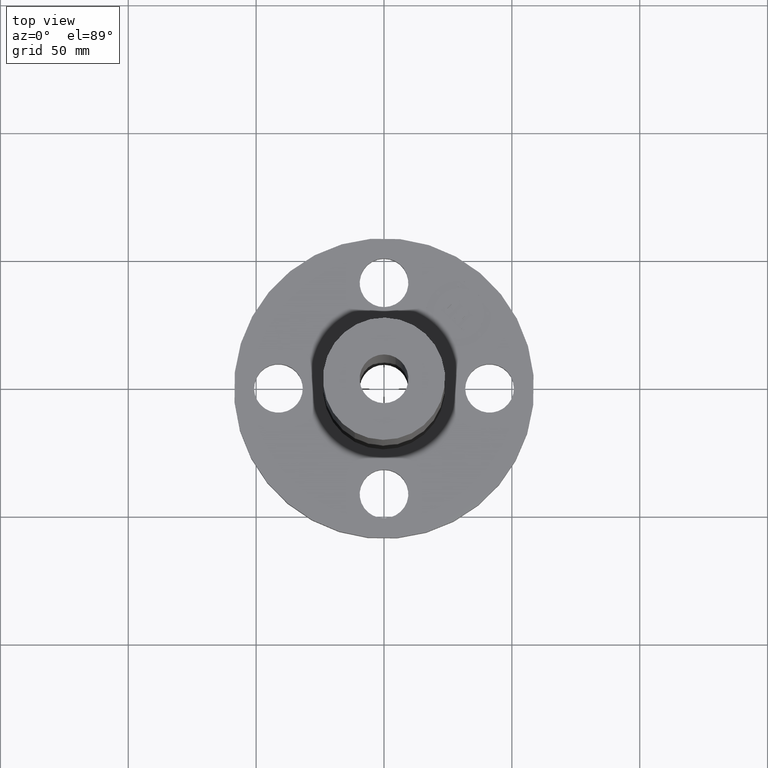
[diagram: clean part render]
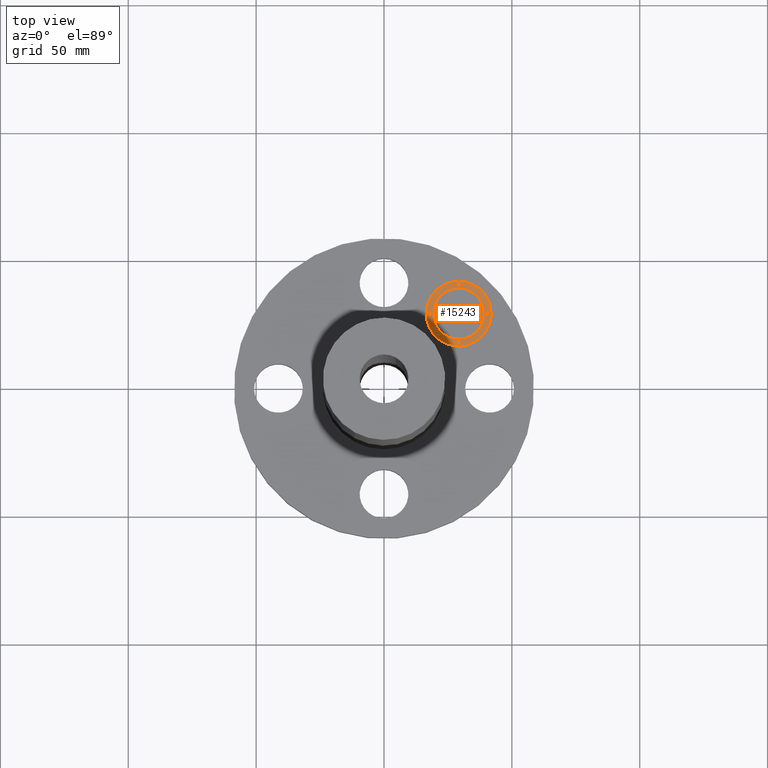
[diagram: same view with one face highlighted and labeled with its STEP entity id]
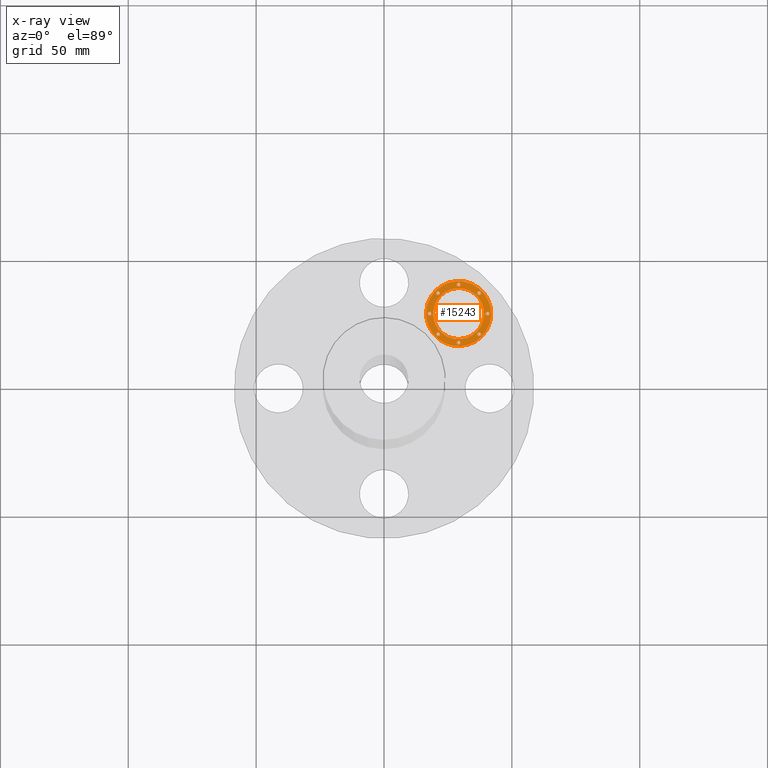
[diagram: x-ray of the same camera — body ghosted, the highlighted face saturated]
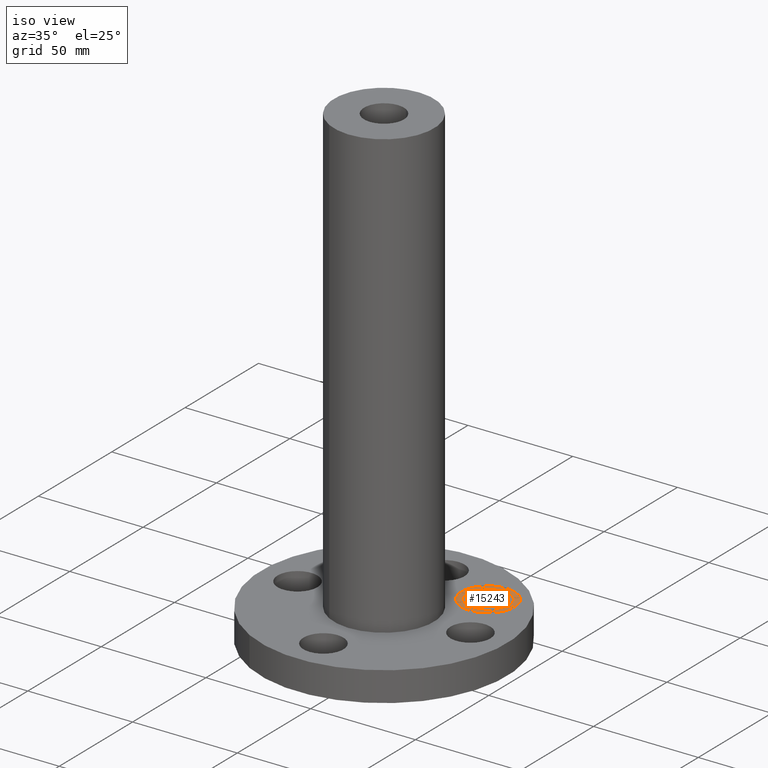
[diagram: same view with one face highlighted and labeled with its STEP entity id]
A machine part, top view. The second image highlights one B-rep face of the part: STEP entity #15243.
The next image is the same camera in x-ray: the body ghosted, the highlighted face saturated — about 0% of this face is hidden behind the body in this view.
A second angle (iso view) of the same face is appended — the face is thin or edge-on in the first view.
In plain terms, the highlighted planar face has unit normal (0, 0, 1).
Its self-contained STEP definition (entity closure, byte-faithful):
#3890=AXIS2_PLACEMENT_3D('Plane Axis2P3D',#3887,#3888,#3889) ;
#15041=AXIS2_PLACEMENT_3D('Circle Axis2P3D',#15039,#15040,$) ;
#15060=AXIS2_PLACEMENT_3D('Circle Axis2P3D',#15058,#15059,$) ;
#15083=AXIS2_PLACEMENT_3D('Circle Axis2P3D',#15081,#15082,$) ;
#15092=AXIS2_PLACEMENT_3D('Circle Axis2P3D',#15090,#15091,$) ;
#15101=AXIS2_PLACEMENT_3D('Circle Axis2P3D',#15099,#15100,$) ;
#15110=AXIS2_PLACEMENT_3D('Circle Axis2P3D',#15108,#15109,$) ;
#15119=AXIS2_PLACEMENT_3D('Circle Axis2P3D',#15117,#15118,$) ;
#15128=AXIS2_PLACEMENT_3D('Circle Axis2P3D',#15126,#15127,$) ;
#15137=AXIS2_PLACEMENT_3D('Circle Axis2P3D',#15135,#15136,$) ;
#15146=AXIS2_PLACEMENT_3D('Circle Axis2P3D',#15144,#15145,$) ;
#15155=AXIS2_PLACEMENT_3D('Circle Axis2P3D',#15153,#15154,$) ;
#15164=AXIS2_PLACEMENT_3D('Circle Axis2P3D',#15162,#15163,$) ;
#15173=AXIS2_PLACEMENT_3D('Circle Axis2P3D',#15171,#15172,$) ;
#15182=AXIS2_PLACEMENT_3D('Circle Axis2P3D',#15180,#15181,$) ;
#15191=AXIS2_PLACEMENT_3D('Circle Axis2P3D',#15189,#15190,$) ;
#15200=AXIS2_PLACEMENT_3D('Circle Axis2P3D',#15198,#15199,$) ;
#15209=AXIS2_PLACEMENT_3D('Circle Axis2P3D',#15207,#15208,$) ;
#15218=AXIS2_PLACEMENT_3D('Circle Axis2P3D',#15216,#15217,$) ;
#15227=AXIS2_PLACEMENT_3D('Circle Axis2P3D',#15225,#15226,$) ;
#15236=AXIS2_PLACEMENT_3D('Circle Axis2P3D',#15234,#15235,$) ;
#3887=CARTESIAN_POINT('Axis2P3D Location',(0.,0.,0.552500000002)) ;
#15029=CARTESIAN_POINT('Vertex',(0.795495132374,1.50260190649,0.552500000002)) ;
#15036=CARTESIAN_POINT('Vertex',(1.50260190649,0.795495132374,0.552500000002)) ;
#15039=CARTESIAN_POINT('Axis2P3D Location',(1.14904851943,1.14904851943,0.552500000002)) ;
#15058=CARTESIAN_POINT('Axis2P3D Location',(1.14904851943,1.14904851943,0.552500000002)) ;
#15081=CARTESIAN_POINT('Axis2P3D Location',(1.14904851943,1.14904851943,0.552500000002)) ;
#15085=CARTESIAN_POINT('Vertex',(1.42760573348,0.870491305386,0.552500000002)) ;
#15087=CARTESIAN_POINT('Vertex',(0.870491305386,1.42760573348,0.552500000002)) ;
#15090=CARTESIAN_POINT('Axis2P3D Location',(1.14904851943,1.14904851943,0.552500000002)) ;
#15099=CARTESIAN_POINT('Axis2P3D Location',(0.83299321888,0.83299321888,0.552500000002)) ;
#15103=CARTESIAN_POINT('Vertex',(0.854420696883,0.811565740876,0.552500000002)) ;
#15105=CARTESIAN_POINT('Vertex',(0.811565740876,0.854420696883,0.552500000002)) ;
#15108=CARTESIAN_POINT('Axis2P3D Location',(0.83299321888,0.83299321888,0.552500000002)) ;
#15117=CARTESIAN_POINT('Axis2P3D Location',(0.83299321888,1.46510381999,0.552500000002)) ;
#15121=CARTESIAN_POINT('Vertex',(0.854420696883,1.44367634198,0.552500000002)) ;
#15123=CARTESIAN_POINT('Vertex',(0.811565740876,1.48653129799,0.552500000002)) ;
#15126=CARTESIAN_POINT('Axis2P3D Location',(0.83299321888,1.46510381999,0.552500000002)) ;
#15135=CARTESIAN_POINT('Axis2P3D Location',(0.702078826931,1.14904851943,0.552500000002)) ;
#15139=CARTESIAN_POINT('Vertex',(0.723506304934,1.12762104143,0.552500000002)) ;
#15141=CARTESIAN_POINT('Vertex',(0.680651348927,1.17047599744,0.552500000002)) ;
#15144=CARTESIAN_POINT('Axis2P3D Location',(0.702078826931,1.14904851943,0.552500000002)) ;
#15153=CARTESIAN_POINT('Axis2P3D Location',(1.46510381999,1.46510381999,0.552500000002)) ;
#15157=CARTESIAN_POINT('Vertex',(1.48653129799,1.44367634198,0.552500000002)) ;
#15159=CARTESIAN_POINT('Vertex',(1.44367634198,1.48653129799,0.552500000002)) ;
#15162=CARTESIAN_POINT('Axis2P3D Location',(1.46510381999,1.46510381999,0.552500000002)) ;
#15171=CARTESIAN_POINT('Axis2P3D Location',(1.14904851943,1.59601821193,0.552500000002)) ;
#15175=CARTESIAN_POINT('Vertex',(1.17047599744,1.57459073393,0.552500000002)) ;
#15177=CARTESIAN_POINT('Vertex',(1.12762104143,1.61744568994,0.552500000002)) ;
#15180=CARTESIAN_POINT('Axis2P3D Location',(1.14904851943,1.59601821193,0.552500000002)) ;
#15189=CARTESIAN_POINT('Axis2P3D Location',(1.46510381999,0.83299321888,0.552500000002)) ;
#15193=CARTESIAN_POINT('Vertex',(1.44367634198,0.854420696883,0.552500000002)) ;
#15195=CARTESIAN_POINT('Vertex',(1.48653129799,0.811565740876,0.552500000002)) ;
#15198=CARTESIAN_POINT('Axis2P3D Location',(1.46510381999,0.83299321888,0.552500000002)) ;
#15207=CARTESIAN_POINT('Axis2P3D Location',(1.14904851943,0.702078826931,0.552500000002)) ;
#15211=CARTESIAN_POINT('Vertex',(1.12762104143,0.723506304934,0.552500000002)) ;
#15213=CARTESIAN_POINT('Vertex',(1.17047599744,0.680651348927,0.552500000002)) ;
#15216=CARTESIAN_POINT('Axis2P3D Location',(1.14904851943,0.702078826931,0.552500000002)) ;
#15225=CARTESIAN_POINT('Axis2P3D Location',(1.59601821193,1.14904851943,0.552500000002)) ;
#15229=CARTESIAN_POINT('Vertex',(1.57459073393,1.17047599744,0.552500000002)) ;
#15231=CARTESIAN_POINT('Vertex',(1.61744568994,1.12762104143,0.552500000002)) ;
#15234=CARTESIAN_POINT('Axis2P3D Location',(1.59601821193,1.14904851943,0.552500000002)) ;
#3888=DIRECTION('Axis2P3D Direction',(0.,0.,0.0393700787402)) ;
#3889=DIRECTION('Axis2P3D XDirection',(0.0393700787402,0.,0.)) ;
#15040=DIRECTION('Axis2P3D Direction',(0.,0.,0.0393700787402)) ;
#15059=DIRECTION('Axis2P3D Direction',(0.,0.,0.0393700787402)) ;
#15082=DIRECTION('Axis2P3D Direction',(0.,0.,0.0393700787402)) ;
#15091=DIRECTION('Axis2P3D Direction',(0.,0.,0.0393700787402)) ;
#15100=DIRECTION('Axis2P3D Direction',(0.,0.,0.0393700787402)) ;
#15109=DIRECTION('Axis2P3D Direction',(0.,0.,0.0393700787402)) ;
#15118=DIRECTION('Axis2P3D Direction',(0.,0.,0.0393700787402)) ;
#15127=DIRECTION('Axis2P3D Direction',(0.,0.,0.0393700787402)) ;
#15136=DIRECTION('Axis2P3D Direction',(0.,0.,0.0393700787402)) ;
#15145=DIRECTION('Axis2P3D Direction',(0.,0.,0.0393700787402)) ;
#15154=DIRECTION('Axis2P3D Direction',(0.,0.,0.0393700787402)) ;
#15163=DIRECTION('Axis2P3D Direction',(0.,0.,0.0393700787402)) ;
#15172=DIRECTION('Axis2P3D Direction',(0.,0.,0.0393700787402)) ;
#15181=DIRECTION('Axis2P3D Direction',(0.,0.,0.0393700787402)) ;
#15190=DIRECTION('Axis2P3D Direction',(0.,0.,0.0393700787402)) ;
#15199=DIRECTION('Axis2P3D Direction',(0.,0.,0.0393700787402)) ;
#15208=DIRECTION('Axis2P3D Direction',(0.,0.,0.0393700787402)) ;
#15217=DIRECTION('Axis2P3D Direction',(0.,0.,0.0393700787402)) ;
#15226=DIRECTION('Axis2P3D Direction',(0.,0.,0.0393700787402)) ;
#15235=DIRECTION('Axis2P3D Direction',(0.,0.,0.0393700787402)) ;
#15078=ORIENTED_EDGE('',*,*,#15043,.T.) ;
#15079=ORIENTED_EDGE('',*,*,#15062,.T.) ;
#15096=ORIENTED_EDGE('',*,*,#15089,.F.) ;
#15097=ORIENTED_EDGE('',*,*,#15094,.F.) ;
#15114=ORIENTED_EDGE('',*,*,#15107,.F.) ;
#15115=ORIENTED_EDGE('',*,*,#15112,.F.) ;
#15132=ORIENTED_EDGE('',*,*,#15125,.F.) ;
#15133=ORIENTED_EDGE('',*,*,#15130,.F.) ;
#15150=ORIENTED_EDGE('',*,*,#15143,.F.) ;
#15151=ORIENTED_EDGE('',*,*,#15148,.F.) ;
#15168=ORIENTED_EDGE('',*,*,#15161,.F.) ;
#15169=ORIENTED_EDGE('',*,*,#15166,.F.) ;
#15186=ORIENTED_EDGE('',*,*,#15179,.F.) ;
#15187=ORIENTED_EDGE('',*,*,#15184,.F.) ;
#15204=ORIENTED_EDGE('',*,*,#15197,.F.) ;
#15205=ORIENTED_EDGE('',*,*,#15202,.F.) ;
#15222=ORIENTED_EDGE('',*,*,#15215,.F.) ;
#15223=ORIENTED_EDGE('',*,*,#15220,.F.) ;
#15240=ORIENTED_EDGE('',*,*,#15233,.F.) ;
#15241=ORIENTED_EDGE('',*,*,#15238,.F.) ;
#15098=FACE_BOUND('',#15095,.T.) ;
#15116=FACE_BOUND('',#15113,.T.) ;
#15134=FACE_BOUND('',#15131,.T.) ;
#15152=FACE_BOUND('',#15149,.T.) ;
#15170=FACE_BOUND('',#15167,.T.) ;
#15188=FACE_BOUND('',#15185,.T.) ;
#15206=FACE_BOUND('',#15203,.T.) ;
#15224=FACE_BOUND('',#15221,.T.) ;
#15242=FACE_BOUND('',#15239,.T.) ;
#15243=ADVANCED_FACE('PartBody',(#15080,#15098,#15116,#15134,#15152,#15170,#15188,#15206,#15224,#15242),#3891,.T.) ;
#15042=CIRCLE('generated circle',#15041,0.499999995002) ;
#15061=CIRCLE('generated circle',#15060,0.499999995002) ;
#15084=CIRCLE('generated circle',#15083,0.393939390002) ;
#15093=CIRCLE('generated circle',#15092,0.393939390002) ;
#15102=CIRCLE('generated circle',#15101,0.0303030300001) ;
#15111=CIRCLE('generated circle',#15110,0.0303030300001) ;
#15120=CIRCLE('generated circle',#15119,0.0303030300001) ;
#15129=CIRCLE('generated circle',#15128,0.0303030300001) ;
#15138=CIRCLE('generated circle',#15137,0.0303030300001) ;
#15147=CIRCLE('generated circle',#15146,0.0303030300001) ;
#15156=CIRCLE('generated circle',#15155,0.0303030300001) ;
#15165=CIRCLE('generated circle',#15164,0.0303030300001) ;
#15174=CIRCLE('generated circle',#15173,0.0303030300001) ;
#15183=CIRCLE('generated circle',#15182,0.0303030300001) ;
#15192=CIRCLE('generated circle',#15191,0.0303030300001) ;
#15201=CIRCLE('generated circle',#15200,0.0303030300001) ;
#15210=CIRCLE('generated circle',#15209,0.0303030300001) ;
#15219=CIRCLE('generated circle',#15218,0.0303030300001) ;
#15228=CIRCLE('generated circle',#15227,0.0303030300001) ;
#15237=CIRCLE('generated circle',#15236,0.0303030300001) ;
#15043=EDGE_CURVE('',#15030,#15037,#15042,.T.) ;
#15062=EDGE_CURVE('',#15037,#15030,#15061,.T.) ;
#15089=EDGE_CURVE('',#15086,#15088,#15084,.T.) ;
#15094=EDGE_CURVE('',#15088,#15086,#15093,.T.) ;
#15107=EDGE_CURVE('',#15104,#15106,#15102,.T.) ;
#15112=EDGE_CURVE('',#15106,#15104,#15111,.T.) ;
#15125=EDGE_CURVE('',#15122,#15124,#15120,.T.) ;
#15130=EDGE_CURVE('',#15124,#15122,#15129,.T.) ;
#15143=EDGE_CURVE('',#15140,#15142,#15138,.T.) ;
#15148=EDGE_CURVE('',#15142,#15140,#15147,.T.) ;
#15161=EDGE_CURVE('',#15158,#15160,#15156,.T.) ;
#15166=EDGE_CURVE('',#15160,#15158,#15165,.T.) ;
#15179=EDGE_CURVE('',#15176,#15178,#15174,.T.) ;
#15184=EDGE_CURVE('',#15178,#15176,#15183,.T.) ;
#15197=EDGE_CURVE('',#15194,#15196,#15192,.T.) ;
#15202=EDGE_CURVE('',#15196,#15194,#15201,.T.) ;
#15215=EDGE_CURVE('',#15212,#15214,#15210,.T.) ;
#15220=EDGE_CURVE('',#15214,#15212,#15219,.T.) ;
#15233=EDGE_CURVE('',#15230,#15232,#15228,.T.) ;
#15238=EDGE_CURVE('',#15232,#15230,#15237,.T.) ;
#15077=EDGE_LOOP('',(#15078,#15079)) ;
#15095=EDGE_LOOP('',(#15096,#15097)) ;
#15113=EDGE_LOOP('',(#15114,#15115)) ;
#15131=EDGE_LOOP('',(#15132,#15133)) ;
#15149=EDGE_LOOP('',(#15150,#15151)) ;
#15167=EDGE_LOOP('',(#15168,#15169)) ;
#15185=EDGE_LOOP('',(#15186,#15187)) ;
#15203=EDGE_LOOP('',(#15204,#15205)) ;
#15221=EDGE_LOOP('',(#15222,#15223)) ;
#15239=EDGE_LOOP('',(#15240,#15241)) ;
#15080=FACE_OUTER_BOUND('',#15077,.T.) ;
#3891=PLANE('',#3890) ;
#15030=VERTEX_POINT('',#15029) ;
#15037=VERTEX_POINT('',#15036) ;
#15086=VERTEX_POINT('',#15085) ;
#15088=VERTEX_POINT('',#15087) ;
#15104=VERTEX_POINT('',#15103) ;
#15106=VERTEX_POINT('',#15105) ;
#15122=VERTEX_POINT('',#15121) ;
#15124=VERTEX_POINT('',#15123) ;
#15140=VERTEX_POINT('',#15139) ;
#15142=VERTEX_POINT('',#15141) ;
#15158=VERTEX_POINT('',#15157) ;
#15160=VERTEX_POINT('',#15159) ;
#15176=VERTEX_POINT('',#15175) ;
#15178=VERTEX_POINT('',#15177) ;
#15194=VERTEX_POINT('',#15193) ;
#15196=VERTEX_POINT('',#15195) ;
#15212=VERTEX_POINT('',#15211) ;
#15214=VERTEX_POINT('',#15213) ;
#15230=VERTEX_POINT('',#15229) ;
#15232=VERTEX_POINT('',#15231) ;